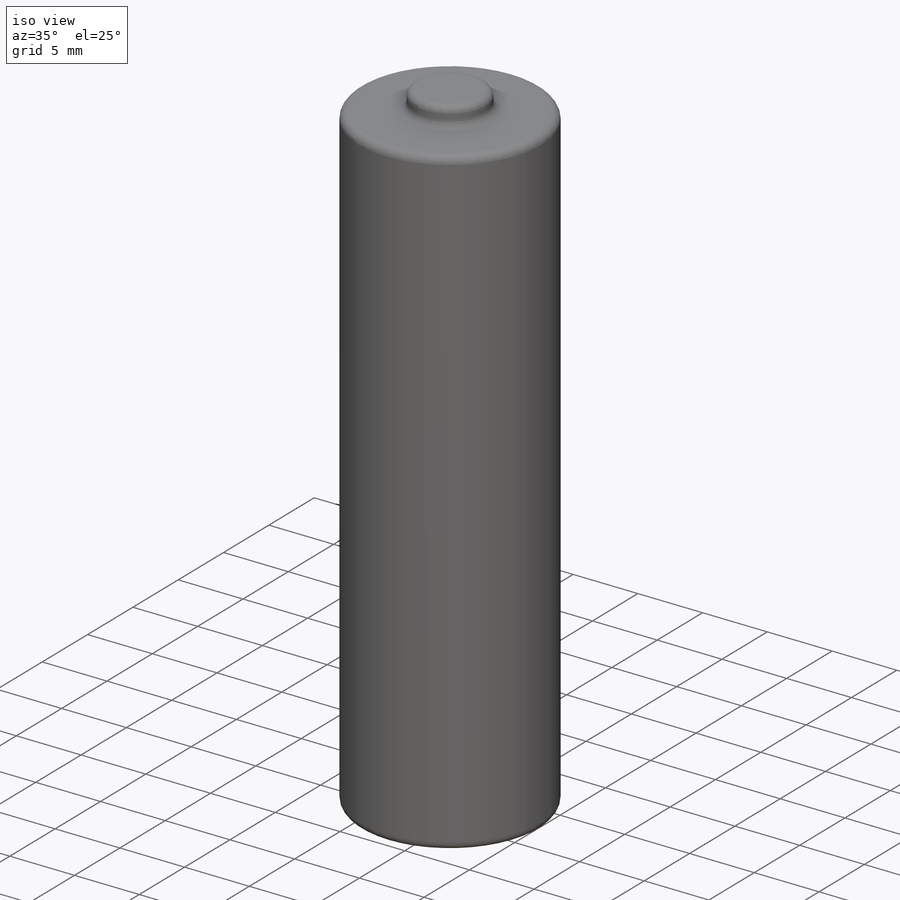
[diagram: iso view]
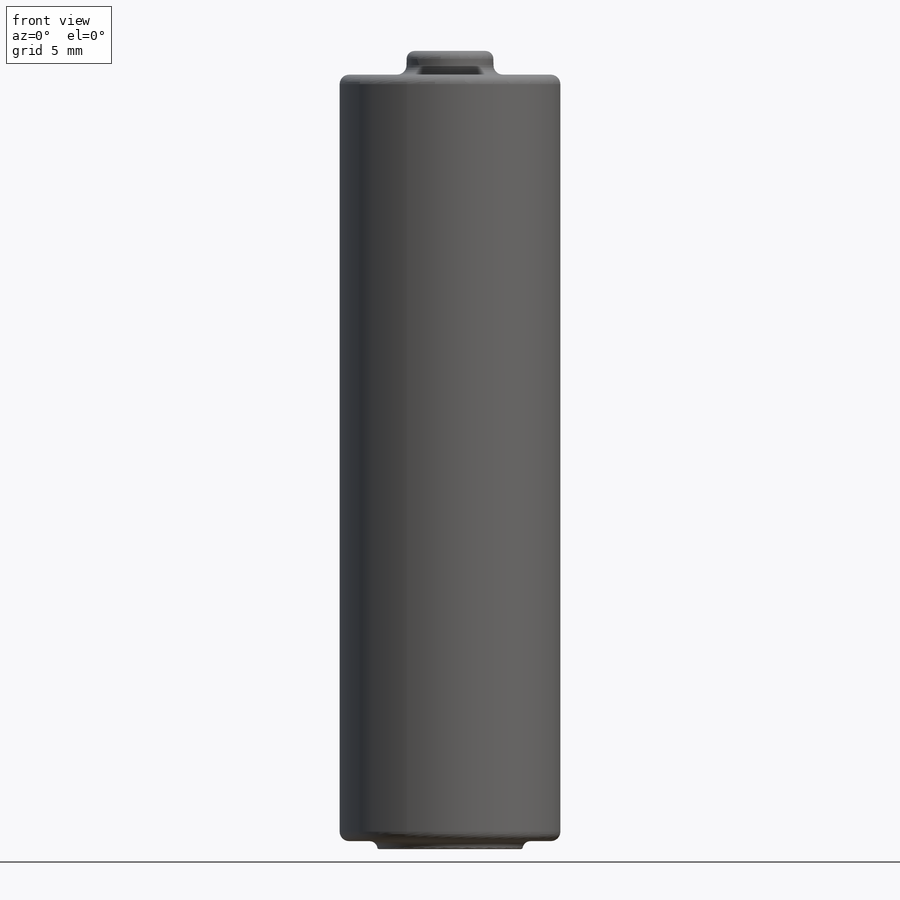
[diagram: front view]
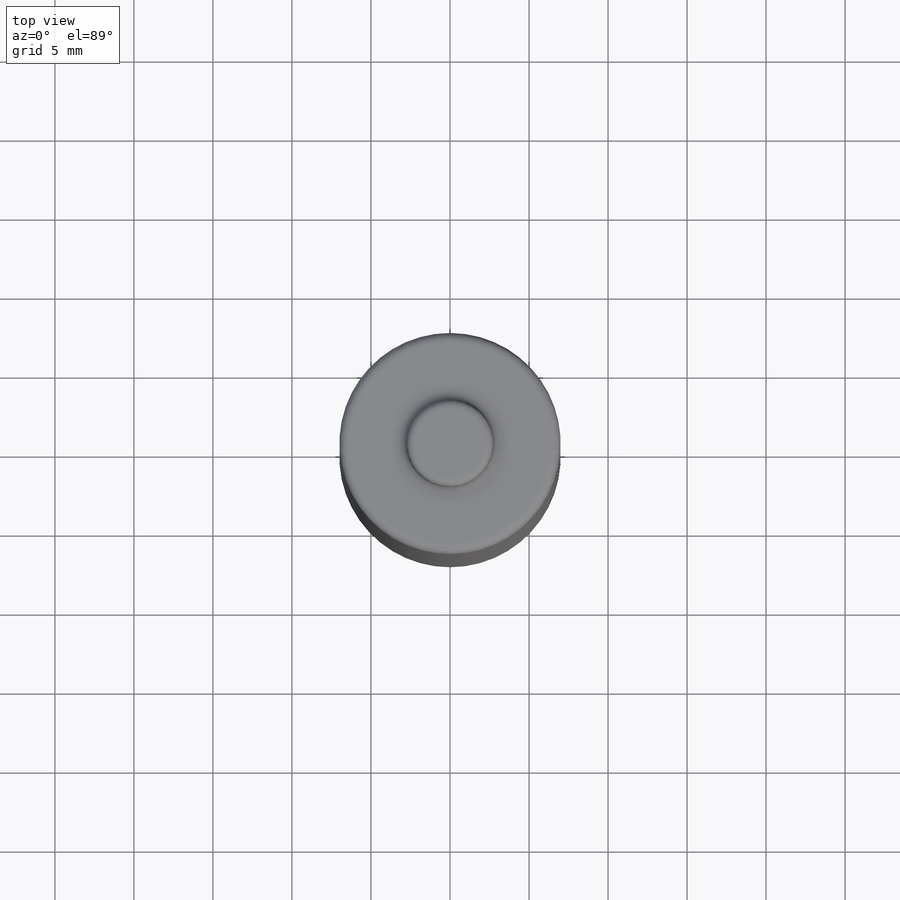
[diagram: top view]
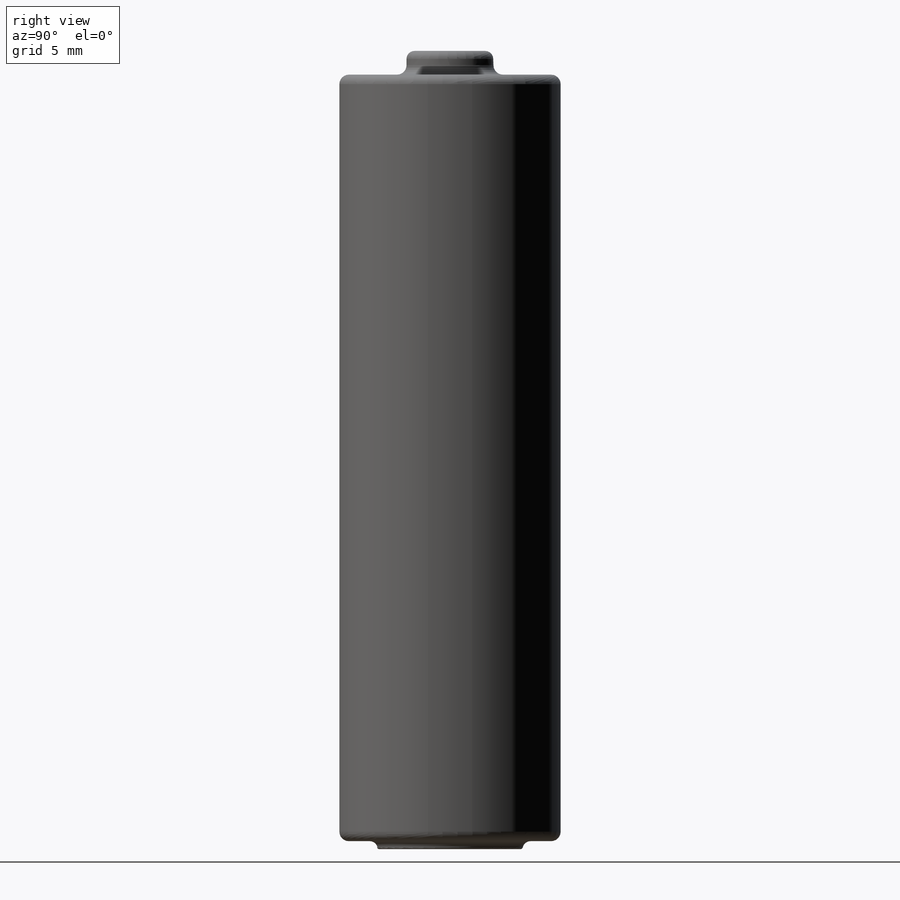
[diagram: right view]
SOLIDWORKS PART (.sldprt)
format: sldprt  version: not decoded by parser v0  size: 222,720 bytes
history: native  units: mm
features: fillet x6, sketch x3, extrude x2, material x1, cut_extrude x1 (+13 scaffold rows collapsed)
feature tree (26):
  scaffold x13  (default folders/planes/origin — collapsed)
  material  "Material <not specified>"
  sketch  "Sketch1"  dims[D1=14.0mm]
  extrude  "Boss-Extrude1"  Depth=49mm
  sketch  "Sketch2"  dims[D1=5.5mm]
  extrude  "Boss-Extrude2"  Depth=1.5mm
  fillet  "Fillet2"  Radius=0.6mm
  fillet  "Fillet3"  Radius=0.5mm
  sketch  "Sketch4"  dims[D1=9.2mm]
  cut_extrude  "Cut-Extrude2"  Depth=0.5mm
  fillet  "Fillet7"  Radius=0.6mm
  fillet  "Fillet8"  Radius=0.6mm
  fillet  "Fillet9"  Radius=0.1mm
  fillet  "Fillet10"  Radius=0.5mm
decode coverage: 12 of 12 modeling features carry decoded parameters
note: suppression state not decoded; provenance and decode notes live in map.json
